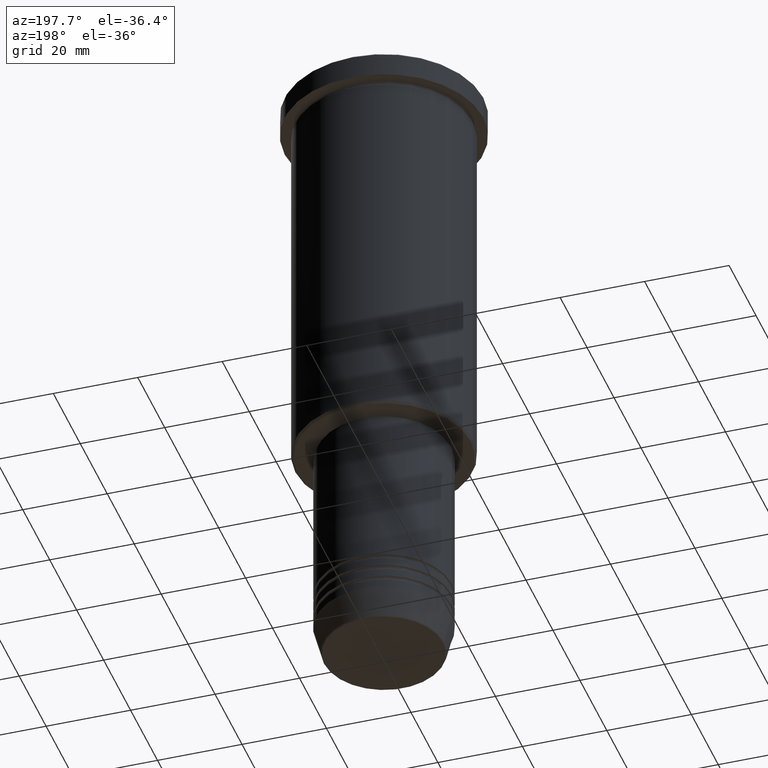
[diagram: clean part render]
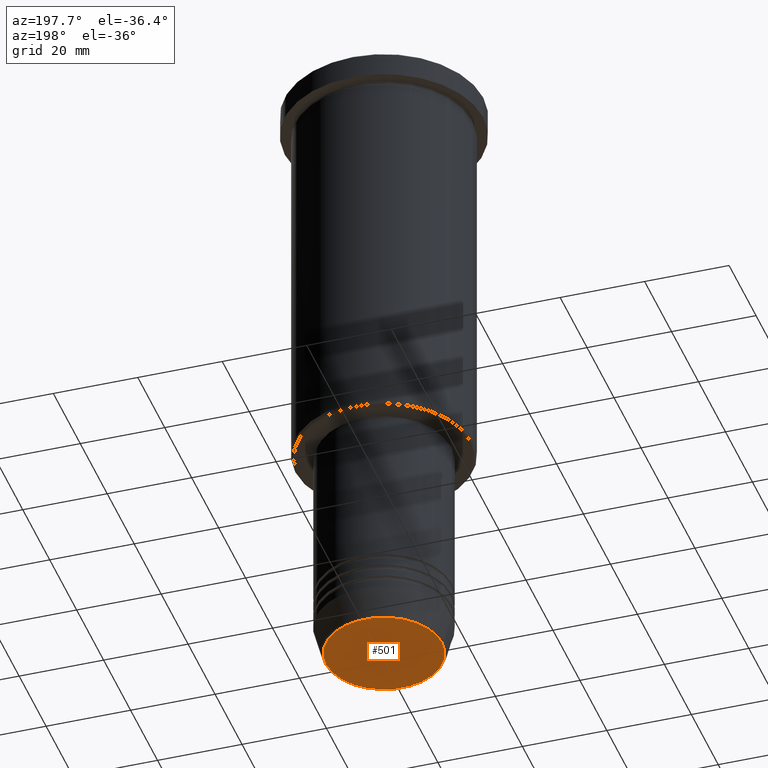
[diagram: same view with one face highlighted and labeled with its STEP entity id]
A machine part, auxiliary view. The second image highlights one B-rep face of the part: STEP entity #501.
In plain terms, the highlighted planar face has unit normal (0, -0, 1).
Its self-contained STEP definition (entity closure, byte-faithful):
#4 = AXIS2_PLACEMENT_3D ( 'NONE', #92, #574, #369 ) ;
#73 = EDGE_CURVE ( 'NONE', #113, #884, #490, .T. ) ;
#92 = CARTESIAN_POINT ( 'NONE',  ( 0.000000000000000000, 0.000000000000000000, -151.0000000000000284 ) ) ;
#109 = DIRECTION ( 'NONE',  ( 0.000000000000000000, -0.000000000000000000, 1.000000000000000000 ) ) ;
#113 = VERTEX_POINT ( 'NONE', #828 ) ;
#149 = EDGE_LOOP ( 'NONE', ( #753, #173 ) ) ;
#173 = ORIENTED_EDGE ( 'NONE', *, *, #826, .T. ) ;
#201 = CARTESIAN_POINT ( 'NONE',  ( -13.74069215899266005, 1.712322416342416380E-15, -151.0000000000000284 ) ) ;
#236 = AXIS2_PLACEMENT_3D ( 'NONE', #754, #1110, #294 ) ;
#294 = DIRECTION ( 'NONE',  ( 1.000000000000000000, 0.000000000000000000, 0.000000000000000000 ) ) ;
#369 = DIRECTION ( 'NONE',  ( 1.000000000000000000, 0.000000000000000000, 0.000000000000000000 ) ) ;
#480 = DIRECTION ( 'NONE',  ( 1.000000000000000000, 0.000000000000000000, 0.000000000000000000 ) ) ;
#490 = CIRCLE ( 'NONE', #4, 13.74069215899266005 ) ;
#501 = ADVANCED_FACE ( 'NONE', ( #1116 ), #1098, .F. ) ;
#574 = DIRECTION ( 'NONE',  ( 0.000000000000000000, 0.000000000000000000, -1.000000000000000000 ) ) ;
#753 = ORIENTED_EDGE ( 'NONE', *, *, #73, .T. ) ;
#754 = CARTESIAN_POINT ( 'NONE',  ( 0.000000000000000000, 0.000000000000000000, -151.0000000000000284 ) ) ;
#815 = AXIS2_PLACEMENT_3D ( 'NONE', #1022, #109, #480 ) ;
#826 = EDGE_CURVE ( 'NONE', #884, #113, #1121, .T. ) ;
#828 = CARTESIAN_POINT ( 'NONE',  ( 13.74069215899266005, 0.000000000000000000, -151.0000000000000284 ) ) ;
#884 = VERTEX_POINT ( 'NONE', #201 ) ;
#1022 = CARTESIAN_POINT ( 'NONE',  ( 0.000000000000000000, 0.000000000000000000, -151.0000000000000284 ) ) ;
#1098 = PLANE ( 'NONE',  #815 ) ;
#1110 = DIRECTION ( 'NONE',  ( 0.000000000000000000, 0.000000000000000000, -1.000000000000000000 ) ) ;
#1116 = FACE_OUTER_BOUND ( 'NONE', #149, .T. ) ;
#1121 = CIRCLE ( 'NONE', #236, 13.74069215899266005 ) ;